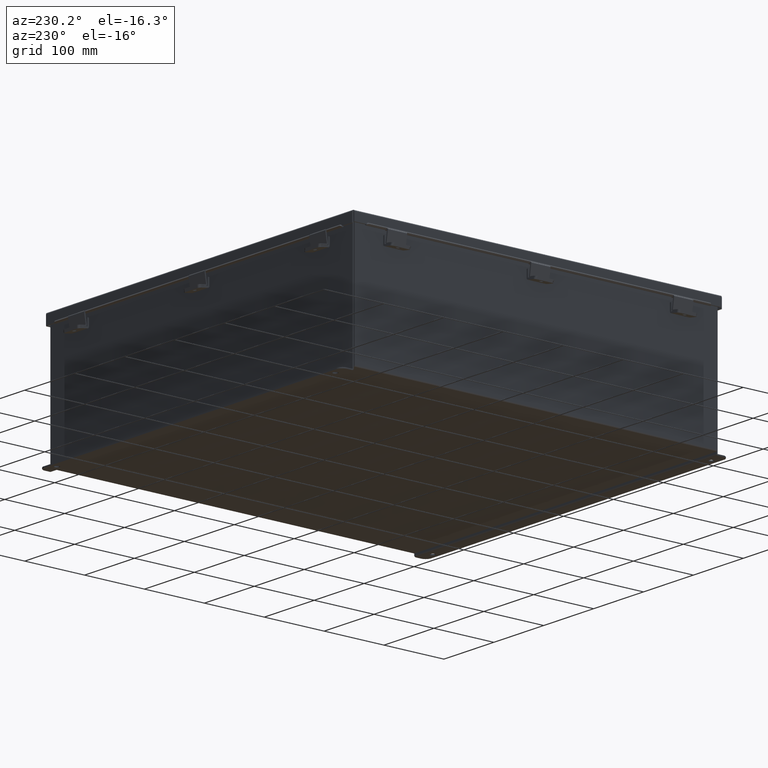
[diagram: clean part render]
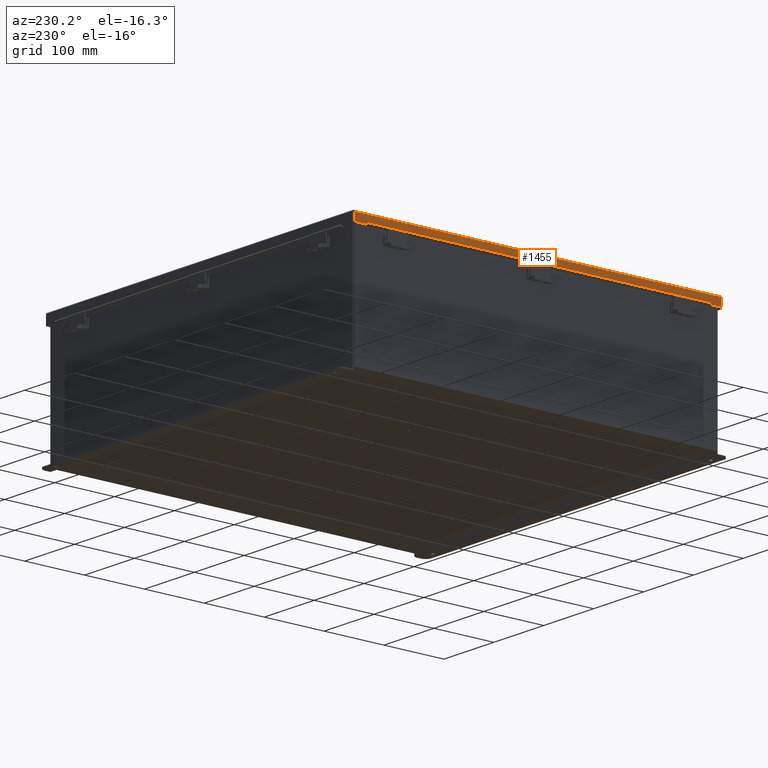
[diagram: same view with one face highlighted and labeled with its STEP entity id]
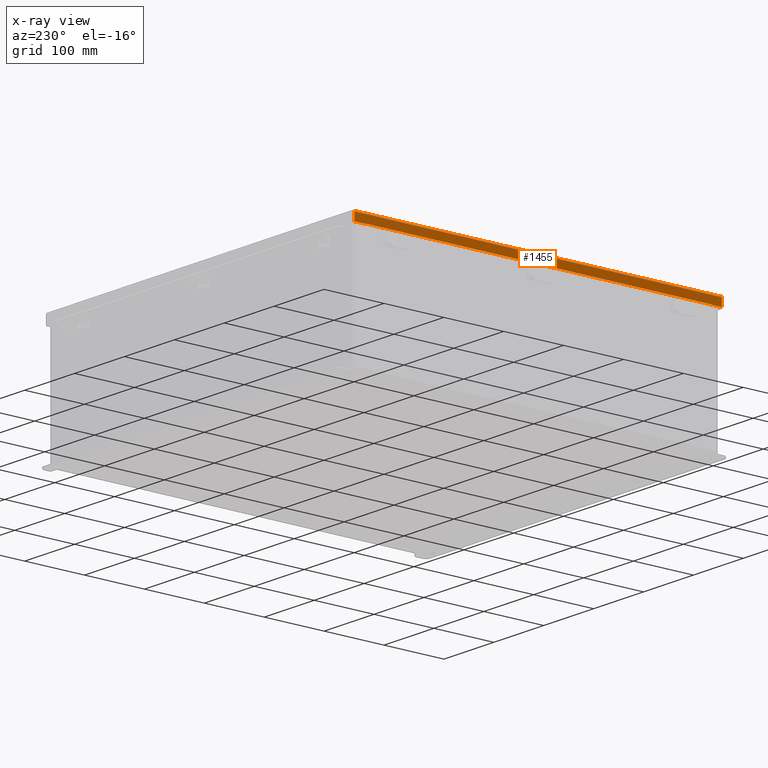
[diagram: x-ray of the same camera — body ghosted, the highlighted face saturated]
A machine part, auxiliary view. The second image highlights one B-rep face of the part: STEP entity #1455.
The next image is the same camera in x-ray: the body ghosted, the highlighted face saturated — about 0% of this face is hidden behind the body in this view.
In plain terms, the highlighted planar face has unit normal (1, -0, 0).
Its self-contained STEP definition (entity closure, byte-faithful):
#129 = LINE ( 'NONE', #4202, #4211 ) ;
#442 = VERTEX_POINT ( 'NONE', #2272 ) ;
#488 = CARTESIAN_POINT ( 'NONE',  ( 12.15625000000003400, 11.32447893218813200, 0.5347115427318754900 ) ) ;
#705 = DIRECTION ( 'NONE',  ( -3.166671605124525800E-030, -1.000000000000000000, -1.853823127269377700E-029 ) ) ;
#755 = ORIENTED_EDGE ( 'NONE', *, *, #3292, .F. ) ;
#849 = VERTEX_POINT ( 'NONE', #2766 ) ;
#1027 = VERTEX_POINT ( 'NONE', #2059 ) ;
#1194 = EDGE_CURVE ( 'NONE', #8363, #5745, #8293, .T. ) ;
#1349 = ORIENTED_EDGE ( 'NONE', *, *, #6262, .T. ) ;
#1421 = LINE ( 'NONE', #6180, #7617 ) ;
#1455 = ADVANCED_FACE ( 'NONE', ( #8296 ), #5402, .F. ) ;
#1667 = CARTESIAN_POINT ( 'NONE',  ( 12.15625000000003900, -12.15625000000000000, 0.01299999999999901400 ) ) ;
#1810 = DIRECTION ( 'NONE',  ( 3.971430846686186800E-015, 1.846427556282924000E-029, 1.000000000000000000 ) ) ;
#1835 = ORIENTED_EDGE ( 'NONE', *, *, #3670, .F. ) ;
#1996 = LINE ( 'NONE', #4195, #5027 ) ;
#2039 = DIRECTION ( 'NONE',  ( 3.166671605124525800E-030, 1.000000000000000000, 1.853823127269377700E-029 ) ) ;
#2059 = CARTESIAN_POINT ( 'NONE',  ( 12.15625000000003900, -12.07447893218813200, 0.5502999999999999000 ) ) ;
#2103 = CARTESIAN_POINT ( 'NONE',  ( 12.15625000000003400, -11.32447893218813200, 0.5347115427318754900 ) ) ;
#2206 = AXIS2_PLACEMENT_3D ( 'NONE', #6280, #3050, #1810 ) ;
#2272 = CARTESIAN_POINT ( 'NONE',  ( 12.15625000000003900, -11.32447893218813200, 0.5502999999999999000 ) ) ;
#2311 = ORIENTED_EDGE ( 'NONE', *, *, #1194, .F. ) ;
#2320 = DIRECTION ( 'NONE',  ( -3.166671605124525800E-030, -1.000000000000000000, -1.853823127269377700E-029 ) ) ;
#2518 = DIRECTION ( 'NONE',  ( 3.971430846686186800E-015, 1.846427556282924300E-029, 1.000000000000000000 ) ) ;
#2726 = DIRECTION ( 'NONE',  ( 2.803970088047830000E-013, 1.846427556282924300E-029, 1.000000000000000000 ) ) ;
#2766 = CARTESIAN_POINT ( 'NONE',  ( 12.15625000000003900, -12.07447893218813200, 0.01299999999999901400 ) ) ;
#2870 = VECTOR ( 'NONE', #2039, 39.37007874015748100 ) ;
#3050 = DIRECTION ( 'NONE',  ( -1.000000000000000000, -3.214874041279299500E-030, 3.971430846686186800E-015 ) ) ;
#3292 = EDGE_CURVE ( 'NONE', #8890, #849, #4496, .T. ) ;
#3370 = LINE ( 'NONE', #2103, #2870 ) ;
#3670 = EDGE_CURVE ( 'NONE', #10069, #8363, #3370, .T. ) ;
#3867 = ORIENTED_EDGE ( 'NONE', *, *, #8242, .F. ) ;
#3991 = DIRECTION ( 'NONE',  ( -3.166671605124525800E-030, -1.000000000000000000, -1.853823127269377700E-029 ) ) ;
#4195 = CARTESIAN_POINT ( 'NONE',  ( 12.15625000000003900, 12.07447893218813200, -4.917326388595673900E-014 ) ) ;
#4202 = CARTESIAN_POINT ( 'NONE',  ( 12.15625000000003900, -12.07447893218813200, -1.092739197465705300E-015 ) ) ;
#4211 = VECTOR ( 'NONE', #2518, 39.37007874015748100 ) ;
#4217 = CARTESIAN_POINT ( 'NONE',  ( 12.15625000000003900, -11.32447893218812900, 0.5347115427318754900 ) ) ;
#4255 = CARTESIAN_POINT ( 'NONE',  ( 12.15625000000003900, 12.07447893218813200, 0.01300000000000010700 ) ) ;
#4496 = LINE ( 'NONE', #1667, #4505 ) ;
#4505 = VECTOR ( 'NONE', #705, 39.37007874015748100 ) ;
#4513 = EDGE_CURVE ( 'NONE', #442, #1027, #7435, .T. ) ;
#5027 = VECTOR ( 'NONE', #5913, 39.37007874015748100 ) ;
#5402 = PLANE ( 'NONE',  #2206 ) ;
#5745 = VERTEX_POINT ( 'NONE', #8292 ) ;
#5913 = DIRECTION ( 'NONE',  ( 3.971430846686186800E-015, 1.846427556282924300E-029, 1.000000000000000000 ) ) ;
#6071 = CARTESIAN_POINT ( 'NONE',  ( 12.15625000000004300, -11.32447893218813200, 0.5502999999999965700 ) ) ;
#6180 = CARTESIAN_POINT ( 'NONE',  ( 12.15625000000004100, 0.0000000000000000000, 0.5502999999999999000 ) ) ;
#6262 = EDGE_CURVE ( 'NONE', #7023, #5745, #1421, .T. ) ;
#6280 = CARTESIAN_POINT ( 'NONE',  ( 12.15625000000003700, 0.0000000000000000000, -4.808052468849102900E-014 ) ) ;
#6807 = CARTESIAN_POINT ( 'NONE',  ( 12.15625000000003900, 12.07447893218813200, 0.5502999999999999000 ) ) ;
#6947 = DIRECTION ( 'NONE',  ( -5.607940176096423400E-013, 1.401985044024099800E-013, -1.000000000000000000 ) ) ;
#7023 = VERTEX_POINT ( 'NONE', #6807 ) ;
#7145 = EDGE_CURVE ( 'NONE', #8890, #7023, #1996, .T. ) ;
#7435 = LINE ( 'NONE', #10088, #9558 ) ;
#7617 = VECTOR ( 'NONE', #2320, 39.37007874015748100 ) ;
#7700 = ORIENTED_EDGE ( 'NONE', *, *, #4513, .T. ) ;
#8021 = ORIENTED_EDGE ( 'NONE', *, *, #9716, .F. ) ;
#8029 = CARTESIAN_POINT ( 'NONE',  ( 12.15625000000003900, 11.32447893218813200, 0.5347115427318754900 ) ) ;
#8242 = EDGE_CURVE ( 'NONE', #849, #1027, #129, .T. ) ;
#8292 = CARTESIAN_POINT ( 'NONE',  ( 12.15625000000003900, 11.32447893218812900, 0.5502999999999999000 ) ) ;
#8293 = LINE ( 'NONE', #488, #9917 ) ;
#8296 = FACE_OUTER_BOUND ( 'NONE', #8744, .T. ) ;
#8363 = VERTEX_POINT ( 'NONE', #8029 ) ;
#8744 = EDGE_LOOP ( 'NONE', ( #8021, #7700, #3867, #755, #10112, #1349, #2311, #1835 ) ) ;
#8820 = VECTOR ( 'NONE', #6947, 39.37007874015748100 ) ;
#8890 = VERTEX_POINT ( 'NONE', #4255 ) ;
#9057 = LINE ( 'NONE', #6071, #8820 ) ;
#9558 = VECTOR ( 'NONE', #3991, 39.37007874015748100 ) ;
#9716 = EDGE_CURVE ( 'NONE', #442, #10069, #9057, .T. ) ;
#9917 = VECTOR ( 'NONE', #2726, 39.37007874015748100 ) ;
#10069 = VERTEX_POINT ( 'NONE', #4217 ) ;
#10088 = CARTESIAN_POINT ( 'NONE',  ( 12.15625000000004100, 0.0000000000000000000, 0.5502999999999999000 ) ) ;
#10112 = ORIENTED_EDGE ( 'NONE', *, *, #7145, .T. ) ;